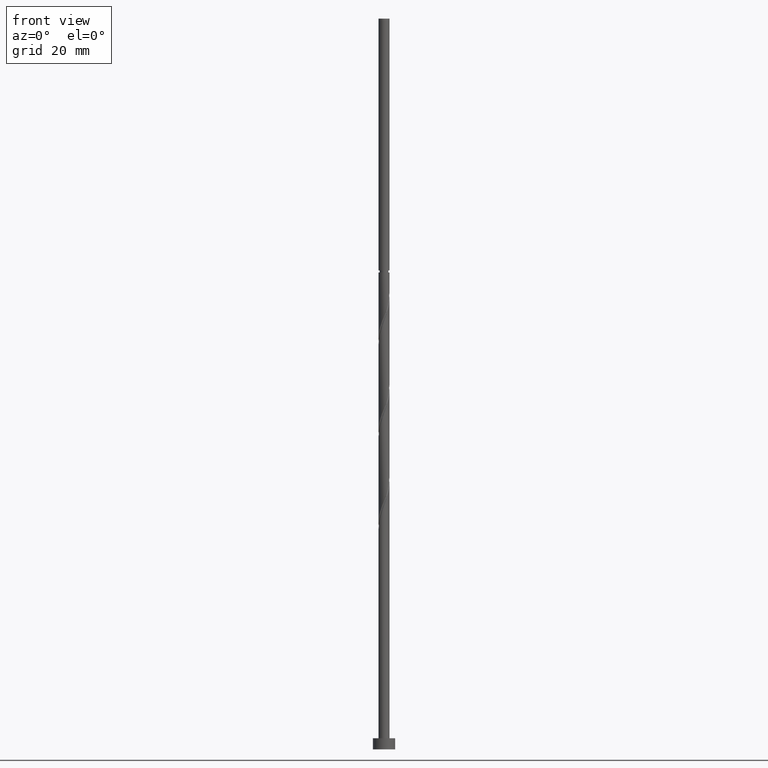
[diagram: clean part render]
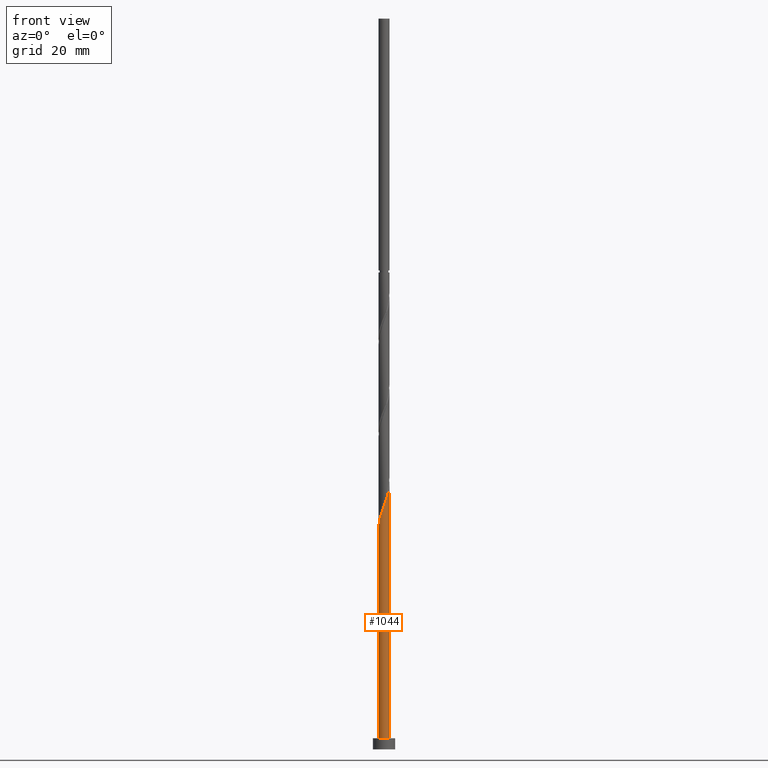
[diagram: same view with one face highlighted and labeled with its STEP entity id]
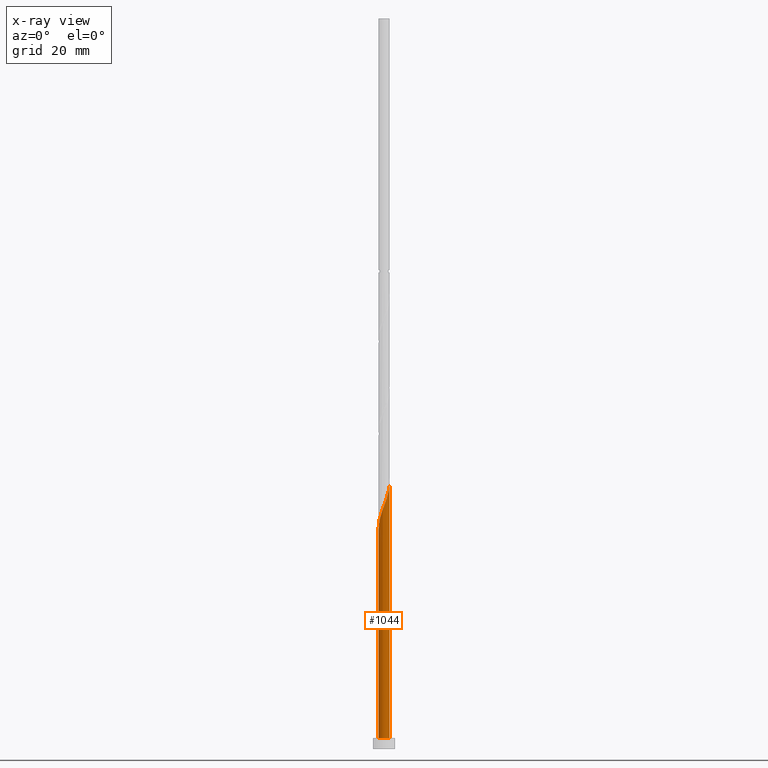
[diagram: x-ray of the same camera — body ghosted, the highlighted face saturated]
A machine part, front view. The second image highlights one B-rep face of the part: STEP entity #1044.
The next image is the same camera in x-ray: the body ghosted, the highlighted face saturated — about 0% of this face is hidden behind the body in this view.
In plain terms, the highlighted cylindrical surface (edge-blend (fillet) strip) has radius 1 mm, axis along (-0, -0, -1).
Its self-contained STEP definition (entity closure, byte-faithful):
#18 = CARTESIAN_POINT ( 'NONE',  ( 0.9482036394194119922, -0.3176631206038637023, 47.24633914444481064 ) ) ;
#33 = CARTESIAN_POINT ( 'NONE',  ( -0.6324182898423036381, -0.7944421381061698151, 42.15374655185222252 ) ) ;
#66 = VECTOR ( 'NONE', #342, 1000.000000000000000 ) ;
#122 = CARTESIAN_POINT ( 'NONE',  ( 0.3717979285156163827, -0.9449113738744305824, 44.93152432962999399 ) ) ;
#149 = FACE_OUTER_BOUND ( 'NONE', #541, .T. ) ;
#169 = CARTESIAN_POINT ( 'NONE',  ( -1.000000000000001776, -1.217525773571817085E-15, 39.77103981167829261 ) ) ;
#176 = VERTEX_POINT ( 'NONE', #287 ) ;
#237 = CARTESIAN_POINT ( 'NONE',  ( 0.6725544933721986363, -0.7607638645273789857, 45.85745025555595333 ) ) ;
#244 = CARTESIAN_POINT ( 'NONE',  ( -0.1481832699744047299, -0.9889599175394803154, 43.54263544074111536 ) ) ;
#261 = DIRECTION ( 'NONE',  ( 1.000000000000000000, 0.000000000000000000, 0.000000000000000000 ) ) ;
#285 = CARTESIAN_POINT ( 'NONE',  ( -0.8659940141538795544, -0.5302316206861081849, 41.22782062592629870 ) ) ;
#287 = CARTESIAN_POINT ( 'NONE',  ( -1.000000000000000000, 0.000000000000000000, 2.000000000000000000 ) ) ;
#303 = ORIENTED_EDGE ( 'NONE', *, *, #991, .T. ) ;
#327 = VERTEX_POINT ( 'NONE', #913 ) ;
#333 = EDGE_CURVE ( 'NONE', #327, #583, #350, .T. ) ;
#342 = DIRECTION ( 'NONE',  ( -0.000000000000000000, -0.000000000000000000, -1.000000000000000000 ) ) ;
#350 = LINE ( 'NONE', #818, #1034 ) ;
#364 = CARTESIAN_POINT ( 'NONE',  ( 0.02619704632702417671, -1.015088626125574489, 44.00559840370407017 ) ) ;
#382 = CARTESIAN_POINT ( 'NONE',  ( 0.000000000000000000, 0.000000000000000000, 2.000000000000000000 ) ) ;
#398 = DIRECTION ( 'NONE',  ( 0.000000000000000000, 0.000000000000000000, 1.000000000000000000 ) ) ;
#417 =( BOUNDED_CURVE ( )  B_SPLINE_CURVE ( 2, ( #169, #1073, #493, #819, #1429, #285, #1296, #33, #1176, #956, #244, #364, #1326, #122, #1287, #237, #832, #1404, #18, #1391, #1398 ),
 .UNSPECIFIED., .F., .T. ) 
 B_SPLINE_CURVE_WITH_KNOTS ( ( 3, 2, 2, 2, 2, 2, 2, 2, 2, 2, 3 ),
 ( 0.05452480538552943040, 0.05555555555555558023, 0.06944444444444441977, 0.08333333333333337034, 0.09722222222222220989, 0.1111111111111111605, 0.1250000000000000000, 0.1388888888888888395, 0.1527777777777777901, 0.1666666666666666297, 0.1795248053855292847 ),
 .UNSPECIFIED. ) 
 CURVE ( )  GEOMETRIC_REPRESENTATION_ITEM ( )  RATIONAL_B_SPLINE_CURVE ( ( 0.9071930855141409067, 0.9080659294509882962, 0.9090909090909280454, 0.8952797754656623974, 0.9090909090909280454, 0.8952797754656623974, 0.9090909090909280454, 0.8952797754656623974, 0.9090909090909280454, 0.8952797754656623974, 0.9090909090909280454, 0.8952797754656623974, 0.9090909090909280454, 0.8952797754656623974, 0.9090909090909280454, 0.8952797754656623974, 0.9090909090909280454, 0.8952797754656623974, 0.9090909090909280454, 0.8963047551056023687, 0.9071930855141405736 ) ) 
 REPRESENTATION_ITEM ( '' )  );
#466 = EDGE_CURVE ( 'NONE', #683, #176, #562, .T. ) ;
#493 = CARTESIAN_POINT ( 'NONE',  ( -0.9996671490029763740, -0.02579905432887370093, 39.83893173703739166 ) ) ;
#504 = CARTESIAN_POINT ( 'NONE',  ( 0.000000000000000000, 0.000000000000000000, 132.0000000000000000 ) ) ;
#541 = EDGE_LOOP ( 'NONE', ( #1332, #1121, #546, #303 ) ) ;
#546 = ORIENTED_EDGE ( 'NONE', *, *, #466, .T. ) ;
#562 = LINE ( 'NONE', #928, #66 ) ;
#583 = VERTEX_POINT ( 'NONE', #1212 ) ;
#624 = DIRECTION ( 'NONE',  ( -1.000000000000000000, 0.000000000000000000, 0.000000000000000000 ) ) ;
#661 = EDGE_CURVE ( 'NONE', #683, #327, #417, .T. ) ;
#683 = VERTEX_POINT ( 'NONE', #745 ) ;
#733 = AXIS2_PLACEMENT_3D ( 'NONE', #382, #398, #261 ) ;
#745 = CARTESIAN_POINT ( 'NONE',  ( -1.000000000000001776, -1.217525773571817085E-15, 39.77103981167829261 ) ) ;
#818 = CARTESIAN_POINT ( 'NONE',  ( 1.000000000000000000, 1.224646799147353207E-16, 132.0000000000000000 ) ) ;
#819 = CARTESIAN_POINT ( 'NONE',  ( -0.9951180796480326718, -0.2020673444260077389, 40.30189470000036778 ) ) ;
#832 = CARTESIAN_POINT ( 'NONE',  ( 0.7823727769265514942, -0.6228104349834223674, 46.32041321851889393 ) ) ;
#913 = CARTESIAN_POINT ( 'NONE',  ( 1.000000000000001554, -1.577928341515621780E-15, 48.10437314501162120 ) ) ;
#928 = CARTESIAN_POINT ( 'NONE',  ( -1.000000000000000000, 0.000000000000000000, 132.0000000000000000 ) ) ;
#956 = CARTESIAN_POINT ( 'NONE',  ( -0.3225635862758335914, -0.9628312089533862528, 43.07967247777815345 ) ) ;
#966 = CYLINDRICAL_SURFACE ( 'NONE', #1064, 1.000000000000000000 ) ;
#991 = EDGE_CURVE ( 'NONE', #176, #583, #1203, .T. ) ;
#1027 = DIRECTION ( 'NONE',  ( -0.000000000000000000, -0.000000000000000000, -1.000000000000000000 ) ) ;
#1034 = VECTOR ( 'NONE', #1027, 1000.000000000000000 ) ;
#1044 = ADVANCED_FACE ( 'NONE', ( #149 ), #966, .T. ) ;
#1064 = AXIS2_PLACEMENT_3D ( 'NONE', #504, #1072, #624 ) ;
#1072 = DIRECTION ( 'NONE',  ( -0.000000000000000000, -0.000000000000000000, -1.000000000000000000 ) ) ;
#1073 = CARTESIAN_POINT ( 'NONE',  ( -1.000000000000001554, -0.01290167433202162733, 39.80505718561064299 ) ) ;
#1121 = ORIENTED_EDGE ( 'NONE', *, *, #661, .F. ) ;
#1176 = CARTESIAN_POINT ( 'NONE',  ( -0.4774909380590687258, -0.8786366735297779229, 42.61670951481519154 ) ) ;
#1203 = CIRCLE ( 'NONE', #733, 1.000000000000000000 ) ;
#1212 = CARTESIAN_POINT ( 'NONE',  ( 1.000000000000000000, 1.224646799147353207E-16, 2.000000000000000000 ) ) ;
#1287 = CARTESIAN_POINT ( 'NONE',  ( 0.5221762109439075372, -0.8528376192009042844, 45.39448729259297011 ) ) ;
#1296 = CARTESIAN_POINT ( 'NONE',  ( -0.7492061519980917073, -0.6623368793961389445, 41.69078358888926772 ) ) ;
#1326 = CARTESIAN_POINT ( 'NONE',  ( 0.1989974874213205069, -0.9800000000000025357, 44.46856136666703918 ) ) ;
#1332 = ORIENTED_EDGE ( 'NONE', *, *, #333, .F. ) ;
#1391 = CARTESIAN_POINT ( 'NONE',  ( 1.000000000000001554, -0.1630543718204586212, 47.67445363264599223 ) ) ;
#1398 = CARTESIAN_POINT ( 'NONE',  ( 1.000000000000001554, -1.577928341515621977E-15, 48.10437314501162120 ) ) ;
#1404 = CARTESIAN_POINT ( 'NONE',  ( 0.8921910604809037970, -0.4848570054394663043, 46.78337618148184163 ) ) ;
#1429 = CARTESIAN_POINT ( 'NONE',  ( -0.9305560469009558355, -0.3661494825560580035, 40.76485766296332969 ) ) ;